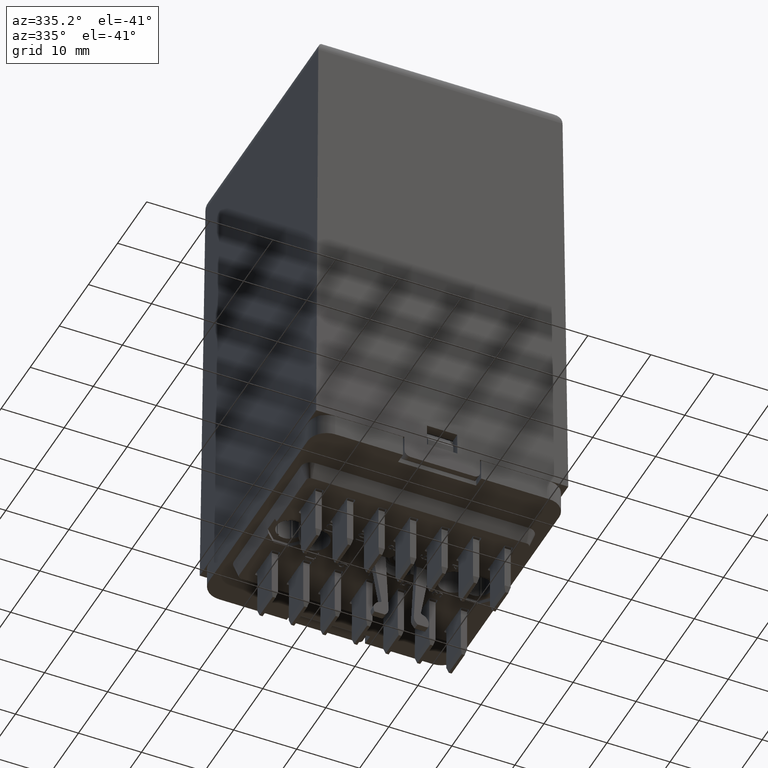
[diagram: clean part render]
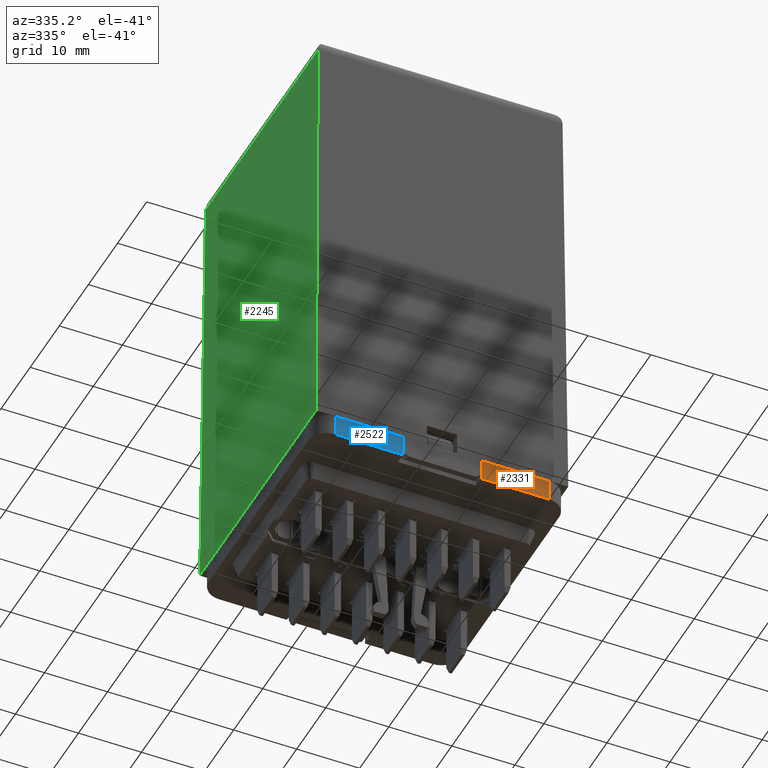
[diagram: same view with three faces highlighted in distinct colors, each labeled with its STEP entity id]
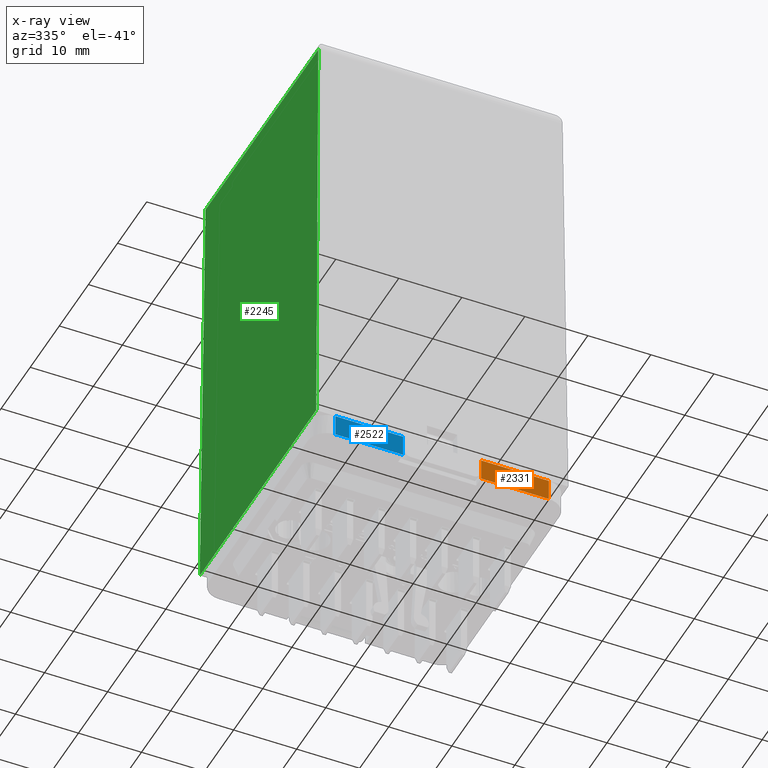
[diagram: x-ray of the same camera — body ghosted, the three highlighted faces saturated]
A machine part, auxiliary view with three faces highlighted in distinct colors.
The next image is the same camera in x-ray (body ghosted, the three faces saturated) — at least one of them is partly hidden behind the body in this view.
Their STEP definitions:

[orange] entity #2331 — the highlighted planar face has unit normal (0, -1, 0).
#1120=CARTESIAN_POINT('',(6.200002521962418,-19.949999857979311,-4.261275113951670));
#1121=VERTEX_POINT('',#1120);
#1128=CARTESIAN_POINT('',(16.950002521962872,-19.949999857979311,-4.261275113950715));
#1129=VERTEX_POINT('',#1128);
#1130=CARTESIAN_POINT('',(16.950002521962872,-19.949999857979311,-4.261275113950715));
#1131=DIRECTION('',(-1.0,0.0,0.0));
#1132=VECTOR('',#1131,10.750000000000455);
#1133=LINE('',#1130,#1132);
#1134=EDGE_CURVE('',#1129,#1121,#1133,.T.);
#2301=CARTESIAN_POINT('',(16.950002521962869,-19.949999857979314,-7.711275113936966));
#2302=DIRECTION('',(0.0,-1.0,0.0));
#2303=DIRECTION('',(0.0,0.0,1.0));
#2304=AXIS2_PLACEMENT_3D('',#2301,#2302,#2303);
#2305=PLANE('',#2304);
#2306=ORIENTED_EDGE('',*,*,#1134,.T.);
#2307=CARTESIAN_POINT('',(6.200002521962416,-19.949999857979314,-7.711275113936961));
#2308=VERTEX_POINT('',#2307);
#2309=CARTESIAN_POINT('',(6.200002521962416,-19.949999857979314,-7.711275113936961));
#2310=DIRECTION('',(0.0,0.0,1.0));
#2311=VECTOR('',#2310,3.449999999985290);
#2312=LINE('',#2309,#2311);
#2313=EDGE_CURVE('',#2308,#1121,#2312,.T.);
#2314=ORIENTED_EDGE('',*,*,#2313,.F.);
#2315=CARTESIAN_POINT('',(16.950002521962869,-19.949999857979314,-7.711275113936966));
#2316=VERTEX_POINT('',#2315);
#2317=CARTESIAN_POINT('',(6.200002521962416,-19.949999857979314,-7.711275113936961));
#2318=DIRECTION('',(1.0,0.0,0.0));
#2319=VECTOR('',#2318,10.750000000000457);
#2320=LINE('',#2317,#2319);
#2321=EDGE_CURVE('',#2308,#2316,#2320,.T.);
#2322=ORIENTED_EDGE('',*,*,#2321,.T.);
#2323=CARTESIAN_POINT('',(16.950002521962869,-19.949999857979314,-7.711275113936966));
#2324=DIRECTION('',(0.0,0.0,1.0));
#2325=VECTOR('',#2324,3.449999999986251);
#2326=LINE('',#2323,#2325);
#2327=EDGE_CURVE('',#2316,#1129,#2326,.T.);
#2328=ORIENTED_EDGE('',*,*,#2327,.T.);
#2329=EDGE_LOOP('',(#2306,#2314,#2322,#2328));
#2330=FACE_OUTER_BOUND('',#2329,.T.);
#2331=ADVANCED_FACE('',(#2330),#2305,.T.);

[blue] entity #2522 — the highlighted planar face has unit normal (0, -1, 0).
#736=CARTESIAN_POINT('',(-16.949997478037218,-19.949999857979311,-4.261275113953725));
#737=VERTEX_POINT('',#736);
#745=CARTESIAN_POINT('',(-6.199997478037219,-19.949999857979311,-4.261275113952770));
#746=VERTEX_POINT('',#745);
#747=CARTESIAN_POINT('',(-6.199997478037219,-19.949999857979311,-4.261275113952770));
#748=DIRECTION('',(-1.0,0.0,0.0));
#749=VECTOR('',#748,10.750000000000000);
#750=LINE('',#747,#749);
#751=EDGE_CURVE('',#746,#737,#750,.T.);
#2492=CARTESIAN_POINT('',(-6.199997478037220,-19.949999857979314,-7.711275113936953));
#2493=DIRECTION('',(0.0,-1.0,0.0));
#2494=DIRECTION('',(0.0,0.0,1.0));
#2495=AXIS2_PLACEMENT_3D('',#2492,#2493,#2494);
#2496=PLANE('',#2495);
#2497=ORIENTED_EDGE('',*,*,#751,.T.);
#2498=CARTESIAN_POINT('',(-16.949997478037222,-19.949999857979314,-7.711275113936946));
#2499=VERTEX_POINT('',#2498);
#2500=CARTESIAN_POINT('',(-16.949997478037222,-19.949999857979314,-7.711275113936946));
#2501=DIRECTION('',(0.0,0.0,1.0));
#2502=VECTOR('',#2501,3.449999999983221);
#2503=LINE('',#2500,#2502);
#2504=EDGE_CURVE('',#2499,#737,#2503,.T.);
#2505=ORIENTED_EDGE('',*,*,#2504,.F.);
#2506=CARTESIAN_POINT('',(-6.199997478037220,-19.949999857979314,-7.711275113936953));
#2507=VERTEX_POINT('',#2506);
#2508=CARTESIAN_POINT('',(-16.949997478037222,-19.949999857979314,-7.711275113936946));
#2509=DIRECTION('',(1.0,0.0,0.0));
#2510=VECTOR('',#2509,10.750000000000000);
#2511=LINE('',#2508,#2510);
#2512=EDGE_CURVE('',#2499,#2507,#2511,.T.);
#2513=ORIENTED_EDGE('',*,*,#2512,.T.);
#2514=CARTESIAN_POINT('',(-6.199997478037220,-19.949999857979314,-7.711275113936953));
#2515=DIRECTION('',(0.0,0.0,1.0));
#2516=VECTOR('',#2515,3.449999999984183);
#2517=LINE('',#2514,#2516);
#2518=EDGE_CURVE('',#2507,#746,#2517,.T.);
#2519=ORIENTED_EDGE('',*,*,#2518,.T.);
#2520=EDGE_LOOP('',(#2497,#2505,#2513,#2519));
#2521=FACE_OUTER_BOUND('',#2520,.T.);
#2522=ADVANCED_FACE('',(#2521),#2496,.T.);

[green] entity #2245 — the highlighted planar face has unit normal (-1, 0, 0.009).
#777=CARTESIAN_POINT('',(-20.000000000000373,-20.000000000000004,-4.261275113954016));
#778=VERTEX_POINT('',#777);
#785=CARTESIAN_POINT('',(-20.000000000000181,20.000000000000004,-4.261275113938153));
#786=VERTEX_POINT('',#785);
#787=CARTESIAN_POINT('',(-20.000000000000373,-20.000000000000004,-4.261275113954016));
#788=DIRECTION('',(4.174439E-015,1.0,3.946399E-013));
#789=VECTOR('',#788,40.000000000000007);
#790=LINE('',#787,#789);
#791=EDGE_CURVE('',#778,#786,#790,.T.);
#1842=CARTESIAN_POINT('',(-19.376655419923157,-19.376655419944111,65.265620356856587));
#1843=VERTEX_POINT('',#1842);
#1850=CARTESIAN_POINT('',(-19.376655419923001,-19.376655419943987,65.265620356856701));
#1851=DIRECTION('',(-0.008964796675415,-0.008964796675109,-0.999919629190838));
#1852=VECTOR('',#1851,69.532483852800823);
#1853=LINE('',#1850,#1852);
#1854=EDGE_CURVE('',#1843,#778,#1853,.T.);
#2123=CARTESIAN_POINT('',(-19.376655419923193,19.376655419889271,65.265620356871992));
#2124=VERTEX_POINT('',#2123);
#2125=CARTESIAN_POINT('',(-20.000000000000888,20.0,-4.261275113938041));
#2126=DIRECTION('',(0.008964796675415,-0.008964796675898,0.999919629190831));
#2127=VECTOR('',#2126,69.532483852800851);
#2128=LINE('',#2125,#2127);
#2129=EDGE_CURVE('',#786,#2124,#2128,.T.);
#2229=CARTESIAN_POINT('',(-19.376655419923271,-20.000000000027647,65.265620356856360));
#2230=DIRECTION('',(-0.999959812173020,5.968170E-016,0.008965156936634));
#2231=DIRECTION('',(-4.134894E-015,-1.0,-3.946290E-013));
#2232=AXIS2_PLACEMENT_3D('',#2229,#2230,#2231);
#2233=PLANE('',#2232);
#2234=ORIENTED_EDGE('',*,*,#2129,.F.);
#2235=ORIENTED_EDGE('',*,*,#791,.F.);
#2236=ORIENTED_EDGE('',*,*,#1854,.F.);
#2237=CARTESIAN_POINT('',(-19.376655419923267,-19.376655419944107,65.265620356856601));
#2238=DIRECTION('',(4.125380E-015,1.0,3.945696E-013));
#2239=VECTOR('',#2238,38.753310839833382);
#2240=LINE('',#2237,#2239);
#2241=EDGE_CURVE('',#1843,#2124,#2240,.T.);
#2242=ORIENTED_EDGE('',*,*,#2241,.T.);
#2243=EDGE_LOOP('',(#2234,#2235,#2236,#2242));
#2244=FACE_OUTER_BOUND('',#2243,.T.);
#2245=ADVANCED_FACE('',(#2244),#2233,.T.);